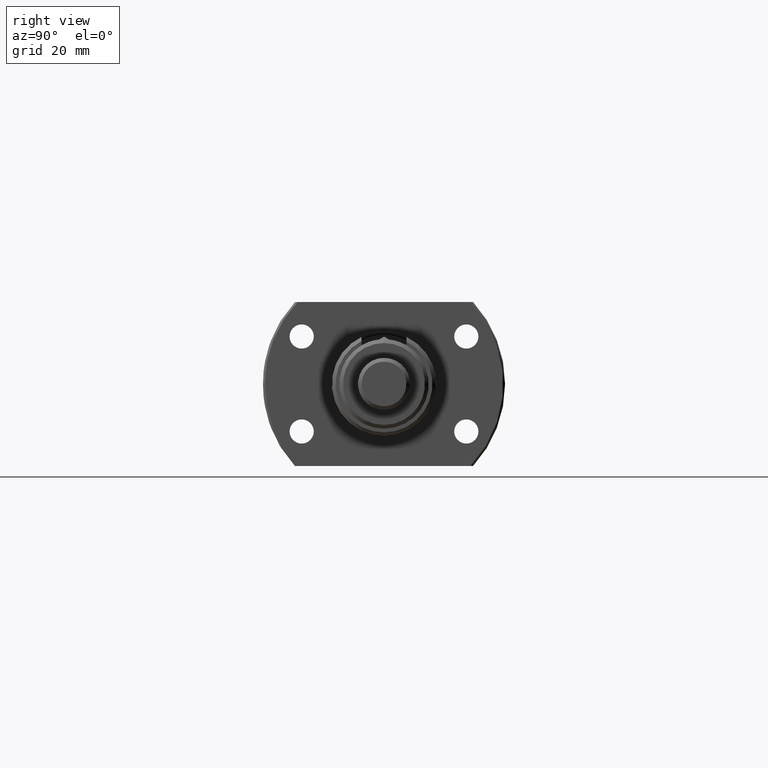
[diagram: clean part render]
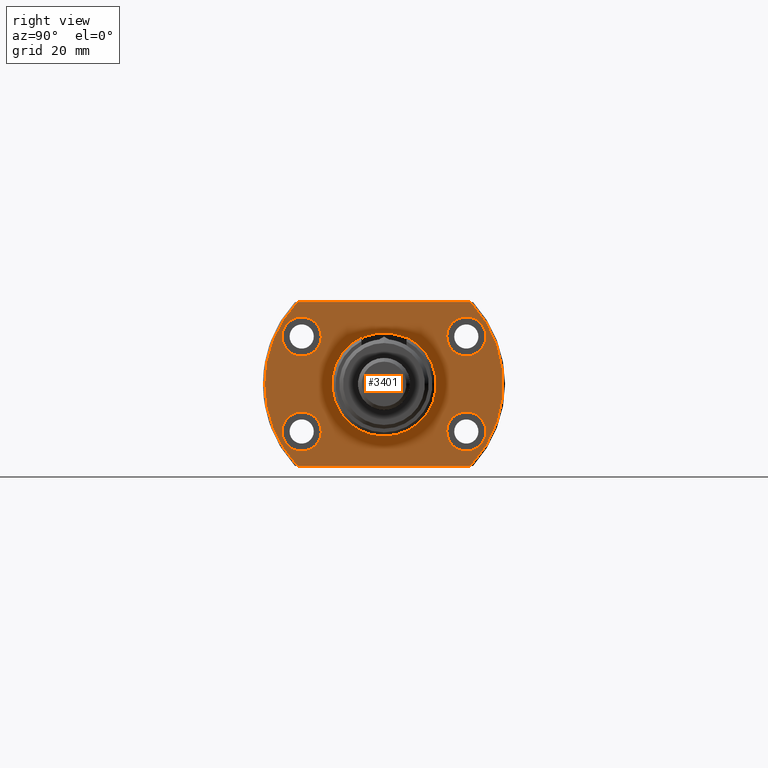
[diagram: same view with one face highlighted and labeled with its STEP entity id]
A machine part, right view. The second image highlights one B-rep face of the part: STEP entity #3401.
In plain terms, the highlighted planar face has unit normal (-1, -0, 0).
Its self-contained STEP definition (entity closure, byte-faithful):
#23 = CARTESIAN_POINT ( 'NONE',  ( 31.50000000000000000, -9.092368251749008943E-13, 0.000000000000000000 ) ) ;
#30 = VECTOR ( 'NONE', #3397, 1000.000000000000000 ) ;
#42 = AXIS2_PLACEMENT_3D ( 'NONE', #4153, #1273, #4121 ) ;
#53 = AXIS2_PLACEMENT_3D ( 'NONE', #2175, #4402, #5890 ) ;
#76 = CARTESIAN_POINT ( 'NONE',  ( 31.50000000000063949, 22.09999999999909193, 12.74999999999999822 ) ) ;
#95 = VECTOR ( 'NONE', #928, 1000.000000000000000 ) ;
#117 = CIRCLE ( 'NONE', #3542, 5.250000000000000888 ) ;
#118 = EDGE_CURVE ( 'NONE', #2814, #4714, #117, .T. ) ;
#138 = AXIS2_PLACEMENT_3D ( 'NONE', #351, #3723, #5525 ) ;
#166 = DIRECTION ( 'NONE',  ( 0.000000000000000000, 1.000000000000000000, 0.000000000000000000 ) ) ;
#202 = LINE ( 'NONE', #4901, #30 ) ;
#215 = ORIENTED_EDGE ( 'NONE', *, *, #3794, .T. ) ;
#223 = ORIENTED_EDGE ( 'NONE', *, *, #5954, .F. ) ;
#226 = AXIS2_PLACEMENT_3D ( 'NONE', #5573, #4717, #1506 ) ;
#233 = AXIS2_PLACEMENT_3D ( 'NONE', #1810, #3175, #4678 ) ;
#273 = DIRECTION ( 'NONE',  ( 2.907726969256361977E-14, 1.000000000000000000, 0.000000000000000000 ) ) ;
#340 = CIRCLE ( 'NONE', #1529, 5.250000000000000888 ) ;
#351 = CARTESIAN_POINT ( 'NONE',  ( 31.50000000000063949, 22.09999999999909193, 12.74999999999999822 ) ) ;
#353 = PLANE ( 'NONE',  #42 ) ;
#374 = LINE ( 'NONE', #4599, #95 ) ;
#425 = EDGE_CURVE ( 'NONE', #2634, #3407, #4825, .T. ) ;
#530 = AXIS2_PLACEMENT_3D ( 'NONE', #76, #2439, #3844 ) ;
#581 = CARTESIAN_POINT ( 'NONE',  ( 31.50000000000000000, 23.23790007724450035, -22.00000000000000355 ) ) ;
#640 = ORIENTED_EDGE ( 'NONE', *, *, #1858, .T. ) ;
#653 = CARTESIAN_POINT ( 'NONE',  ( 31.50000000000000000, -32.00000000000000000, 0.000000000000000000 ) ) ;
#675 = VERTEX_POINT ( 'NONE', #3093 ) ;
#676 = CARTESIAN_POINT ( 'NONE',  ( 31.49999999999936051, -22.10000000000091092, 12.74999999999999822 ) ) ;
#687 = CARTESIAN_POINT ( 'NONE',  ( 31.50000000000000000, 8.572527594031465301E-16, 0.000000000000000000 ) ) ;
#813 = CARTESIAN_POINT ( 'NONE',  ( 31.50000000000000000, 23.23790007724450035, 22.00000000000000355 ) ) ;
#909 = ORIENTED_EDGE ( 'NONE', *, *, #3984, .T. ) ;
#912 = CARTESIAN_POINT ( 'NONE',  ( 31.50000000000079226, 27.34999999999909548, -12.75000000000000178 ) ) ;
#928 = DIRECTION ( 'NONE',  ( -2.721437331438560389E-17, 1.000000000000000000, -0.000000000000000000 ) ) ;
#954 = ORIENTED_EDGE ( 'NONE', *, *, #4227, .F. ) ;
#1050 = CARTESIAN_POINT ( 'NONE',  ( 31.50000000000000000, -23.23790007724450035, -22.00000000000000355 ) ) ;
#1101 = DIRECTION ( 'NONE',  ( 1.000000000000000000, 2.721437331438560389E-17, -0.000000000000000000 ) ) ;
#1111 = CIRCLE ( 'NONE', #2683, 32.00000000000000000 ) ;
#1124 = AXIS2_PLACEMENT_3D ( 'NONE', #23, #5271, #2428 ) ;
#1160 = CARTESIAN_POINT ( 'NONE',  ( 31.50000000000063949, 22.09999999999909193, -12.75000000000000178 ) ) ;
#1273 = DIRECTION ( 'NONE',  ( -1.000000000000000000, -2.721437331438560389E-17, 0.000000000000000000 ) ) ;
#1303 = FACE_BOUND ( 'NONE', #1703, .T. ) ;
#1307 = AXIS2_PLACEMENT_3D ( 'NONE', #1505, #1907, #5598 ) ;
#1323 = CIRCLE ( 'NONE', #233, 5.250000000000000888 ) ;
#1380 = VERTEX_POINT ( 'NONE', #1717 ) ;
#1505 = CARTESIAN_POINT ( 'NONE',  ( 31.50000000000000000, 8.572527594031465301E-16, 0.000000000000000000 ) ) ;
#1506 = DIRECTION ( 'NONE',  ( 0.000000000000000000, -1.000000000000000000, 0.000000000000000000 ) ) ;
#1529 = AXIS2_PLACEMENT_3D ( 'NONE', #2944, #4348, #273 ) ;
#1544 = CARTESIAN_POINT ( 'NONE',  ( 31.50000000000000000, 8.572527594031465301E-16, 0.000000000000000000 ) ) ;
#1574 = EDGE_CURVE ( 'NONE', #4918, #4829, #1323, .T. ) ;
#1703 = EDGE_LOOP ( 'NONE', ( #5081, #3208 ) ) ;
#1717 = CARTESIAN_POINT ( 'NONE',  ( 31.49999999999951328, -16.85000000000091092, -12.75000000000000178 ) ) ;
#1762 = ORIENTED_EDGE ( 'NONE', *, *, #425, .T. ) ;
#1796 = CARTESIAN_POINT ( 'NONE',  ( 31.49999999999920774, -27.35000000000091092, -12.75000000000000178 ) ) ;
#1810 = CARTESIAN_POINT ( 'NONE',  ( 31.50000000000063949, 22.09999999999909193, -12.75000000000000178 ) ) ;
#1858 = EDGE_CURVE ( 'NONE', #2409, #5419, #5887, .T. ) ;
#1907 = DIRECTION ( 'NONE',  ( 1.000000000000000000, 2.721437331438560389E-17, -0.000000000000000000 ) ) ;
#1926 = CIRCLE ( 'NONE', #53, 5.250000000000000888 ) ;
#1962 = EDGE_CURVE ( 'NONE', #3605, #675, #2009, .T. ) ;
#1993 = EDGE_LOOP ( 'NONE', ( #954, #223 ) ) ;
#2009 = CIRCLE ( 'NONE', #138, 5.250000000000000888 ) ;
#2084 = CARTESIAN_POINT ( 'NONE',  ( 31.49999999999951328, -16.85000000000091092, 12.74999999999999822 ) ) ;
#2175 = CARTESIAN_POINT ( 'NONE',  ( 31.49999999999936051, -22.10000000000091092, -12.75000000000000178 ) ) ;
#2254 = FACE_BOUND ( 'NONE', #5135, .T. ) ;
#2280 = FACE_OUTER_BOUND ( 'NONE', #4803, .T. ) ;
#2283 = AXIS2_PLACEMENT_3D ( 'NONE', #687, #2623, #166 ) ;
#2313 = VERTEX_POINT ( 'NONE', #3010 ) ;
#2409 = VERTEX_POINT ( 'NONE', #2484 ) ;
#2428 = DIRECTION ( 'NONE',  ( 0.000000000000000000, -1.000000000000000000, 0.000000000000000000 ) ) ;
#2439 = DIRECTION ( 'NONE',  ( 1.000000000000000000, -2.886466111666351885E-14, 0.000000000000000000 ) ) ;
#2484 = CARTESIAN_POINT ( 'NONE',  ( 31.50000000000000000, -23.23790007724449680, 22.00000000000000355 ) ) ;
#2543 = DIRECTION ( 'NONE',  ( 1.000000000000000000, -2.887798767815668620E-14, -6.310887241768094443E-30 ) ) ;
#2581 = CARTESIAN_POINT ( 'NONE',  ( 31.50000000000000000, -13.75000000000088107, 1.683889348827607301E-15 ) ) ;
#2623 = DIRECTION ( 'NONE',  ( 1.000000000000000000, 2.721437331438560389E-17, -0.000000000000000000 ) ) ;
#2634 = VERTEX_POINT ( 'NONE', #581 ) ;
#2637 = DIRECTION ( 'NONE',  ( 1.000000000000000000, -2.887798767815668620E-14, -6.310887241768094443E-30 ) ) ;
#2641 = EDGE_CURVE ( 'NONE', #2313, #5471, #5899, .T. ) ;
#2665 = CARTESIAN_POINT ( 'NONE',  ( 31.49999999999936051, -22.10000000000091092, -12.75000000000000178 ) ) ;
#2683 = AXIS2_PLACEMENT_3D ( 'NONE', #1544, #1101, #4840 ) ;
#2700 = DIRECTION ( 'NONE',  ( 1.000000000000000000, -2.887798767815668620E-14, -6.310887241768094443E-30 ) ) ;
#2753 = ORIENTED_EDGE ( 'NONE', *, *, #5257, .F. ) ;
#2770 = ORIENTED_EDGE ( 'NONE', *, *, #118, .F. ) ;
#2775 = EDGE_CURVE ( 'NONE', #5419, #3981, #1111, .T. ) ;
#2784 = EDGE_CURVE ( 'NONE', #2409, #3407, #202, .T. ) ;
#2814 = VERTEX_POINT ( 'NONE', #2084 ) ;
#2944 = CARTESIAN_POINT ( 'NONE',  ( 31.49999999999936051, -22.10000000000091092, 12.74999999999999822 ) ) ;
#3010 = CARTESIAN_POINT ( 'NONE',  ( 31.50000000000000000, 13.74999999999826805, 0.000000000000000000 ) ) ;
#3093 = CARTESIAN_POINT ( 'NONE',  ( 31.50000000000079226, 27.34999999999909548, 12.74999999999999822 ) ) ;
#3115 = EDGE_CURVE ( 'NONE', #675, #3605, #3272, .T. ) ;
#3175 = DIRECTION ( 'NONE',  ( 1.000000000000000000, -2.887798767815668620E-14, -6.310887241768094443E-30 ) ) ;
#3181 = CIRCLE ( 'NONE', #5141, 5.250000000000000888 ) ;
#3186 = DIRECTION ( 'NONE',  ( 2.907726969256361977E-14, 1.000000000000000000, 0.000000000000000000 ) ) ;
#3208 = ORIENTED_EDGE ( 'NONE', *, *, #1962, .F. ) ;
#3272 = CIRCLE ( 'NONE', #530, 5.250000000000000888 ) ;
#3397 = DIRECTION ( 'NONE',  ( -0.000000000000000000, 1.000000000000000000, 0.000000000000000000 ) ) ;
#3401 = ADVANCED_FACE ( 'NONE', ( #2254, #1303, #3601, #4190, #5467, #2280 ), #353, .F. ) ;
#3407 = VERTEX_POINT ( 'NONE', #813 ) ;
#3461 = CIRCLE ( 'NONE', #1124, 13.74999999999917577 ) ;
#3542 = AXIS2_PLACEMENT_3D ( 'NONE', #676, #2543, #5272 ) ;
#3553 = CARTESIAN_POINT ( 'NONE',  ( 31.50000000000048672, 16.84999999999909193, 12.74999999999999822 ) ) ;
#3601 = FACE_BOUND ( 'NONE', #5488, .T. ) ;
#3605 = VERTEX_POINT ( 'NONE', #3553 ) ;
#3638 = EDGE_LOOP ( 'NONE', ( #5205, #2753 ) ) ;
#3723 = DIRECTION ( 'NONE',  ( 1.000000000000000000, -2.886466111666351885E-14, 0.000000000000000000 ) ) ;
#3794 = EDGE_CURVE ( 'NONE', #3981, #2634, #374, .T. ) ;
#3795 = CARTESIAN_POINT ( 'NONE',  ( 31.50000000000048672, 16.84999999999909193, -12.75000000000000178 ) ) ;
#3798 = VERTEX_POINT ( 'NONE', #1796 ) ;
#3844 = DIRECTION ( 'NONE',  ( 2.907726969256361977E-14, 1.000000000000000000, 0.000000000000000000 ) ) ;
#3916 = ORIENTED_EDGE ( 'NONE', *, *, #2784, .F. ) ;
#3979 = AXIS2_PLACEMENT_3D ( 'NONE', #1160, #2637, #4077 ) ;
#3981 = VERTEX_POINT ( 'NONE', #1050 ) ;
#3984 = EDGE_CURVE ( 'NONE', #5471, #2313, #3461, .T. ) ;
#4077 = DIRECTION ( 'NONE',  ( 2.907726969256361977E-14, 1.000000000000000000, 0.000000000000000000 ) ) ;
#4090 = EDGE_CURVE ( 'NONE', #4714, #2814, #340, .T. ) ;
#4121 = DIRECTION ( 'NONE',  ( 2.721437331438560389E-17, -1.000000000000000000, 0.000000000000000000 ) ) ;
#4153 = CARTESIAN_POINT ( 'NONE',  ( 31.50000000000000000, -32.00000000000000000, 0.000000000000000000 ) ) ;
#4190 = FACE_BOUND ( 'NONE', #1993, .T. ) ;
#4227 = EDGE_CURVE ( 'NONE', #1380, #3798, #3181, .T. ) ;
#4348 = DIRECTION ( 'NONE',  ( 1.000000000000000000, -2.887798767815668620E-14, -6.310887241768094443E-30 ) ) ;
#4402 = DIRECTION ( 'NONE',  ( 1.000000000000000000, -2.887798767815668620E-14, -6.310887241768094443E-30 ) ) ;
#4587 = CARTESIAN_POINT ( 'NONE',  ( 31.49999999999920774, -27.35000000000091092, 12.74999999999999822 ) ) ;
#4599 = CARTESIAN_POINT ( 'NONE',  ( 31.50000000000000000, -32.00000000000000000, -22.00000000000000355 ) ) ;
#4678 = DIRECTION ( 'NONE',  ( 2.907726969256361977E-14, 1.000000000000000000, 0.000000000000000000 ) ) ;
#4684 = ORIENTED_EDGE ( 'NONE', *, *, #2641, .T. ) ;
#4714 = VERTEX_POINT ( 'NONE', #4587 ) ;
#4717 = DIRECTION ( 'NONE',  ( -1.000000000000000000, -2.721437331438560389E-17, 0.000000000000000000 ) ) ;
#4803 = EDGE_LOOP ( 'NONE', ( #3916, #640, #5051, #215, #1762 ) ) ;
#4825 = CIRCLE ( 'NONE', #1307, 32.00000000000000000 ) ;
#4829 = VERTEX_POINT ( 'NONE', #3795 ) ;
#4840 = DIRECTION ( 'NONE',  ( 0.000000000000000000, 1.000000000000000000, 0.000000000000000000 ) ) ;
#4901 = CARTESIAN_POINT ( 'NONE',  ( 31.50000000000000000, 23.92174742781217489, 22.00000000000000355 ) ) ;
#4918 = VERTEX_POINT ( 'NONE', #912 ) ;
#5051 = ORIENTED_EDGE ( 'NONE', *, *, #2775, .T. ) ;
#5081 = ORIENTED_EDGE ( 'NONE', *, *, #3115, .F. ) ;
#5135 = EDGE_LOOP ( 'NONE', ( #4684, #909 ) ) ;
#5141 = AXIS2_PLACEMENT_3D ( 'NONE', #2665, #2700, #3186 ) ;
#5205 = ORIENTED_EDGE ( 'NONE', *, *, #1574, .F. ) ;
#5257 = EDGE_CURVE ( 'NONE', #4829, #4918, #5727, .T. ) ;
#5271 = DIRECTION ( 'NONE',  ( -1.000000000000000000, -2.721437331438560389E-17, 0.000000000000000000 ) ) ;
#5272 = DIRECTION ( 'NONE',  ( 2.907726969256361977E-14, 1.000000000000000000, 0.000000000000000000 ) ) ;
#5419 = VERTEX_POINT ( 'NONE', #653 ) ;
#5467 = FACE_BOUND ( 'NONE', #3638, .T. ) ;
#5471 = VERTEX_POINT ( 'NONE', #2581 ) ;
#5488 = EDGE_LOOP ( 'NONE', ( #2770, #5827 ) ) ;
#5525 = DIRECTION ( 'NONE',  ( 2.907726969256361977E-14, 1.000000000000000000, 0.000000000000000000 ) ) ;
#5573 = CARTESIAN_POINT ( 'NONE',  ( 31.50000000000000000, -9.092368251749008943E-13, 0.000000000000000000 ) ) ;
#5598 = DIRECTION ( 'NONE',  ( 0.000000000000000000, 1.000000000000000000, 0.000000000000000000 ) ) ;
#5727 = CIRCLE ( 'NONE', #3979, 5.250000000000000888 ) ;
#5827 = ORIENTED_EDGE ( 'NONE', *, *, #4090, .F. ) ;
#5887 = CIRCLE ( 'NONE', #2283, 32.00000000000000000 ) ;
#5890 = DIRECTION ( 'NONE',  ( 2.907726969256361977E-14, 1.000000000000000000, 0.000000000000000000 ) ) ;
#5899 = CIRCLE ( 'NONE', #226, 13.74999999999917577 ) ;
#5954 = EDGE_CURVE ( 'NONE', #3798, #1380, #1926, .T. ) ;